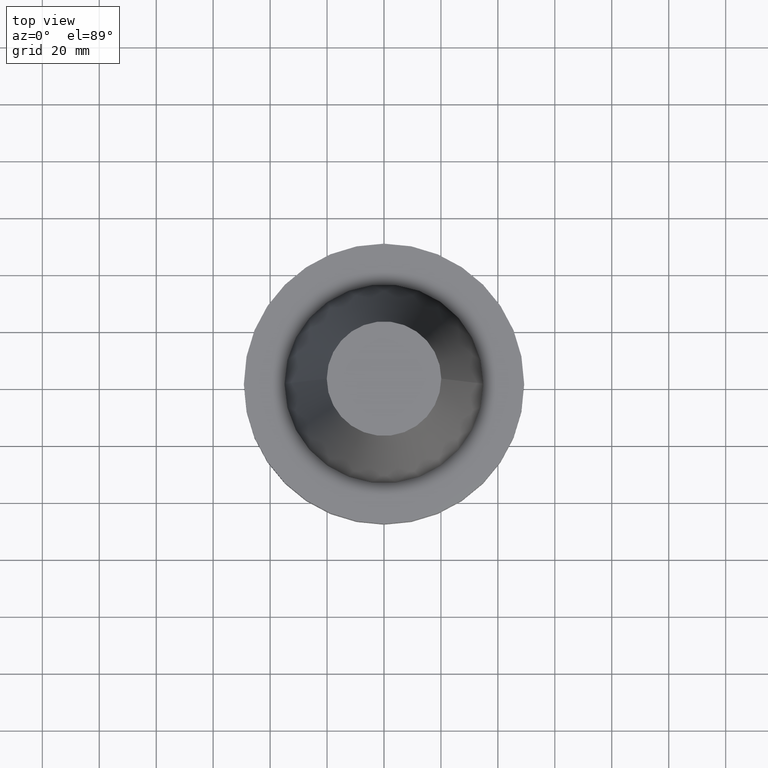
[diagram: clean part render]
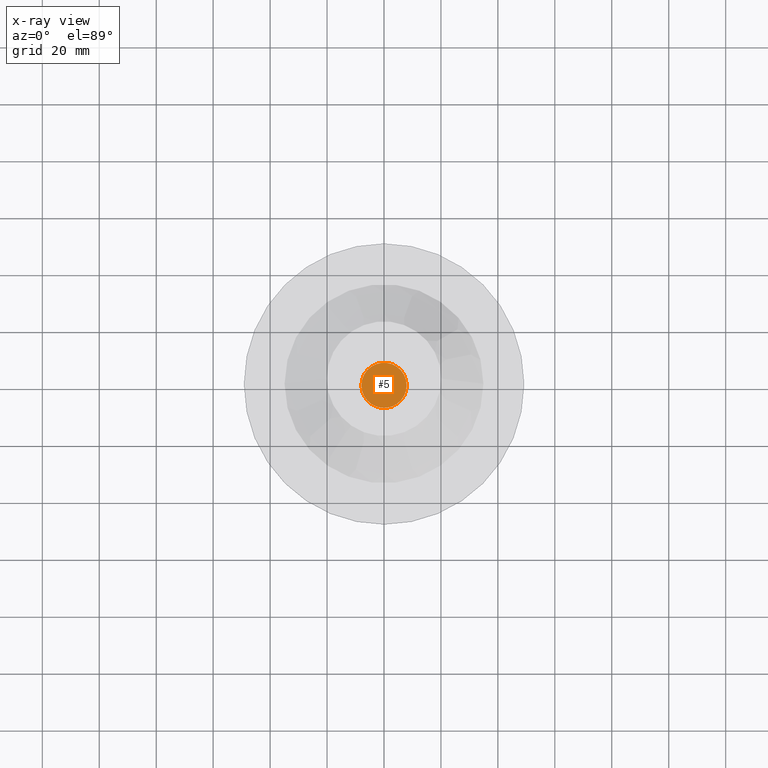
[diagram: x-ray — body ghosted, one internal face saturated and labeled with its STEP entity id]
A machine part, top view, then the same camera in x-ray: the body is ghosted and one INTERNAL B-rep face — a face not visible from any outside direction — is saturated and labeled: STEP entity #5.
In plain terms, the highlighted planar face has unit normal (0, -0, 1).
Its self-contained STEP definition (entity closure, byte-faithful):
#5 = ADVANCED_FACE ( 'NONE', ( #507 ), #197, .F. ) ;
#8 = DIRECTION ( 'NONE',  ( 1.000000000000000000, 0.000000000000000000, 0.000000000000000000 ) ) ;
#90 = AXIS2_PLACEMENT_3D ( 'NONE', #719, #790, #381 ) ;
#113 = EDGE_CURVE ( 'NONE', #316, #292, #523, .T. ) ;
#133 = EDGE_CURVE ( 'NONE', #292, #316, #712, .T. ) ;
#166 = EDGE_LOOP ( 'NONE', ( #345, #392 ) ) ;
#197 = PLANE ( 'NONE',  #90 ) ;
#265 = CARTESIAN_POINT ( 'NONE',  ( 0.000000000000000000, 0.000000000000000000, -35.04999999999999716 ) ) ;
#268 = CARTESIAN_POINT ( 'NONE',  ( 0.000000000000000000, 0.000000000000000000, -35.04999999999999716 ) ) ;
#276 = DIRECTION ( 'NONE',  ( -0.000000000000000000, -0.000000000000000000, 1.000000000000000000 ) ) ;
#292 = VERTEX_POINT ( 'NONE', #367 ) ;
#316 = VERTEX_POINT ( 'NONE', #688 ) ;
#323 = AXIS2_PLACEMENT_3D ( 'NONE', #268, #276, #8 ) ;
#345 = ORIENTED_EDGE ( 'NONE', *, *, #133, .F. ) ;
#367 = CARTESIAN_POINT ( 'NONE',  ( 7.939999999999992397, 0.000000000000000000, -35.04999999999999716 ) ) ;
#381 = DIRECTION ( 'NONE',  ( 1.000000000000000000, 0.000000000000000000, 0.000000000000000000 ) ) ;
#392 = ORIENTED_EDGE ( 'NONE', *, *, #113, .F. ) ;
#507 = FACE_OUTER_BOUND ( 'NONE', #166, .T. ) ;
#523 = CIRCLE ( 'NONE', #684, 7.939999999999992397 ) ;
#535 = DIRECTION ( 'NONE',  ( -0.000000000000000000, -0.000000000000000000, 1.000000000000000000 ) ) ;
#593 = DIRECTION ( 'NONE',  ( 1.000000000000000000, 0.000000000000000000, 0.000000000000000000 ) ) ;
#684 = AXIS2_PLACEMENT_3D ( 'NONE', #265, #535, #593 ) ;
#688 = CARTESIAN_POINT ( 'NONE',  ( -7.939999999999992397, 9.723695585229975260E-16, -35.04999999999999716 ) ) ;
#712 = CIRCLE ( 'NONE', #323, 7.939999999999992397 ) ;
#719 = CARTESIAN_POINT ( 'NONE',  ( 0.000000000000000000, 34.92499999999999716, -35.04999999999999716 ) ) ;
#790 = DIRECTION ( 'NONE',  ( 0.000000000000000000, -0.000000000000000000, 1.000000000000000000 ) ) ;